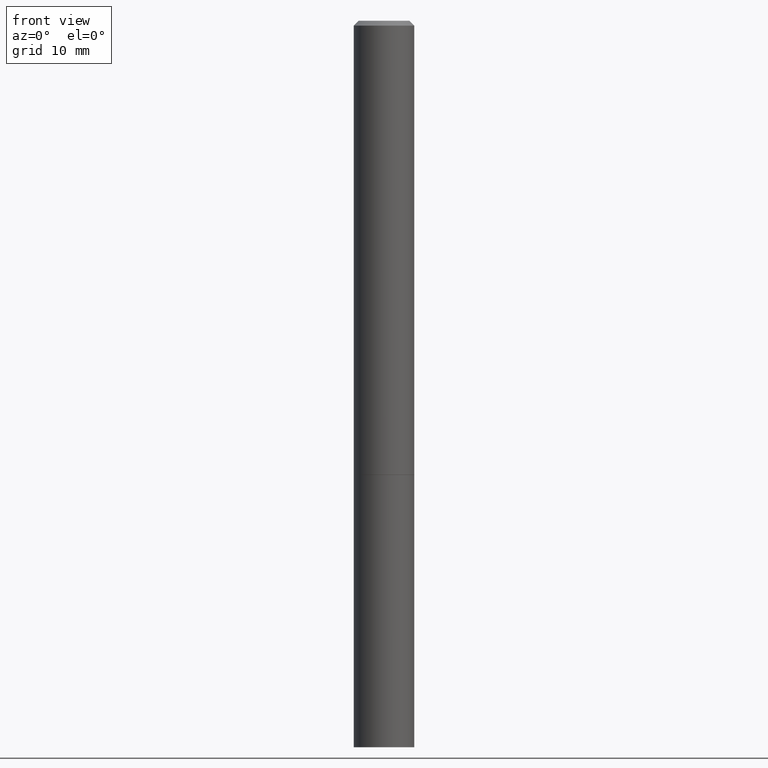
[diagram: clean part render]
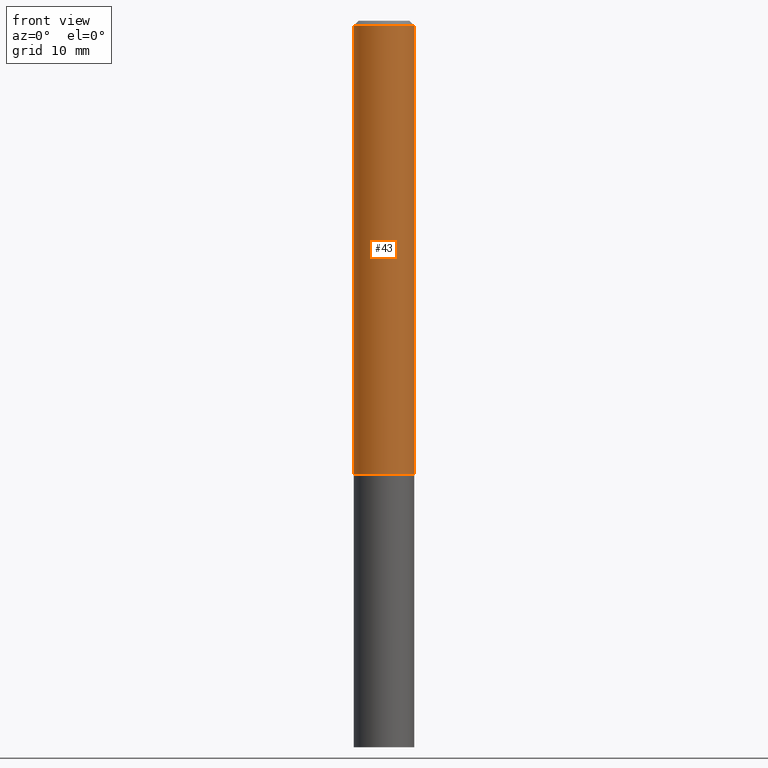
[diagram: same view with one face highlighted and labeled with its STEP entity id]
A machine part, front view. The second image highlights one B-rep face of the part: STEP entity #43.
In plain terms, the highlighted cylindrical surface (edge-blend (fillet) strip) has radius 3.175 mm, axis along (-0, 0, 1).
Its self-contained STEP definition (entity closure, byte-faithful):
#3 = CARTESIAN_POINT ( 'NONE',  ( 0.1249999999999998751, -8.728703347107825500E-16, 6.095220969744913435E-30 ) ) ;
#14 = AXIS2_PLACEMENT_3D ( 'NONE', #243, #231, #120 ) ;
#22 = CARTESIAN_POINT ( 'NONE',  ( -0.1249999999999998751, 8.881784197001243449E-16, -6.148668862818626622E-30 ) ) ;
#38 = ORIENTED_EDGE ( 'NONE', *, *, #105, .T. ) ;
#43 = ADVANCED_FACE ( 'NONE', ( #273 ), #167, .T. ) ;
#55 = VERTEX_POINT ( 'NONE', #356 ) ;
#59 = VECTOR ( 'NONE', #182, 39.37007874015748143 ) ;
#70 = EDGE_CURVE ( 'NONE', #124, #55, #305, .T. ) ;
#73 = VERTEX_POINT ( 'NONE', #117 ) ;
#79 = DIRECTION ( 'NONE',  ( -2.445468806185136597E-29, 3.491481338843145583E-15, 1.000000000000000000 ) ) ;
#85 = DIRECTION ( 'NONE',  ( -2.445468806185136597E-29, 3.491481338843145583E-15, 1.000000000000000000 ) ) ;
#93 = CARTESIAN_POINT ( 'NONE',  ( 0.1250000000000000000, -7.415906363702839039E-15, -1.874000000000000110 ) ) ;
#98 = EDGE_CURVE ( 'NONE', #73, #124, #328, .T. ) ;
#105 = EDGE_CURVE ( 'NONE', #73, #366, #134, .T. ) ;
#117 = CARTESIAN_POINT ( 'NONE',  ( -0.1250000000000000000, -2.418254408184330717E-15, -1.874000000000000110 ) ) ;
#120 = DIRECTION ( 'NONE',  ( 1.000000000000000000, -6.982962677686266711E-15, 0.000000000000000000 ) ) ;
#124 = VERTEX_POINT ( 'NONE', #275 ) ;
#134 = CIRCLE ( 'NONE', #389, 0.1250000000000000000 ) ;
#167 = CYLINDRICAL_SURFACE ( 'NONE', #375, 0.1249999999999998751 ) ;
#175 = CARTESIAN_POINT ( 'NONE',  ( 0.000000000000000000, 0.000000000000000000, 0.000000000000000000 ) ) ;
#182 = DIRECTION ( 'NONE',  ( -2.445468806185136877E-29, 3.491481338843145188E-15, 1.000000000000000000 ) ) ;
#231 = DIRECTION ( 'NONE',  ( -2.445468806185136597E-29, 3.491481338843145583E-15, 1.000000000000000000 ) ) ;
#234 = ORIENTED_EDGE ( 'NONE', *, *, #70, .F. ) ;
#236 = DIRECTION ( 'NONE',  ( 1.000000000000000000, -6.982962677686270655E-15, 0.000000000000000000 ) ) ;
#243 = CARTESIAN_POINT ( 'NONE',  ( 4.890937612370279289E-31, -6.982962677686299005E-17, -0.02000000000000002470 ) ) ;
#252 = LINE ( 'NONE', #3, #59 ) ;
#258 = EDGE_CURVE ( 'NONE', #366, #55, #252, .T. ) ;
#259 = ORIENTED_EDGE ( 'NONE', *, *, #98, .F. ) ;
#273 = FACE_OUTER_BOUND ( 'NONE', #386, .T. ) ;
#275 = CARTESIAN_POINT ( 'NONE',  ( -0.1249999999999997641, 8.030407079339186601E-16, -0.02000000000000002470 ) ) ;
#292 = ORIENTED_EDGE ( 'NONE', *, *, #258, .T. ) ;
#295 = DIRECTION ( 'NONE',  ( -2.445468806185136877E-29, 3.491481338843145188E-15, 1.000000000000000000 ) ) ;
#296 = DIRECTION ( 'NONE',  ( 1.000000000000000000, -6.982962677686267499E-15, 4.876176775795935793E-29 ) ) ;
#305 = CIRCLE ( 'NONE', #14, 0.1249999999999997641 ) ;
#321 = VECTOR ( 'NONE', #295, 39.37007874015748143 ) ;
#328 = LINE ( 'NONE', #22, #321 ) ;
#333 = CARTESIAN_POINT ( 'NONE',  ( 4.582808542790945516E-29, -6.543036028992054911E-15, -1.874000000000000110 ) ) ;
#356 = CARTESIAN_POINT ( 'NONE',  ( 0.1249999999999997641, -9.273918764983027713E-16, -0.02000000000000002470 ) ) ;
#366 = VERTEX_POINT ( 'NONE', #93 ) ;
#375 = AXIS2_PLACEMENT_3D ( 'NONE', #175, #85, #296 ) ;
#386 = EDGE_LOOP ( 'NONE', ( #259, #38, #292, #234 ) ) ;
#389 = AXIS2_PLACEMENT_3D ( 'NONE', #333, #79, #236 ) ;